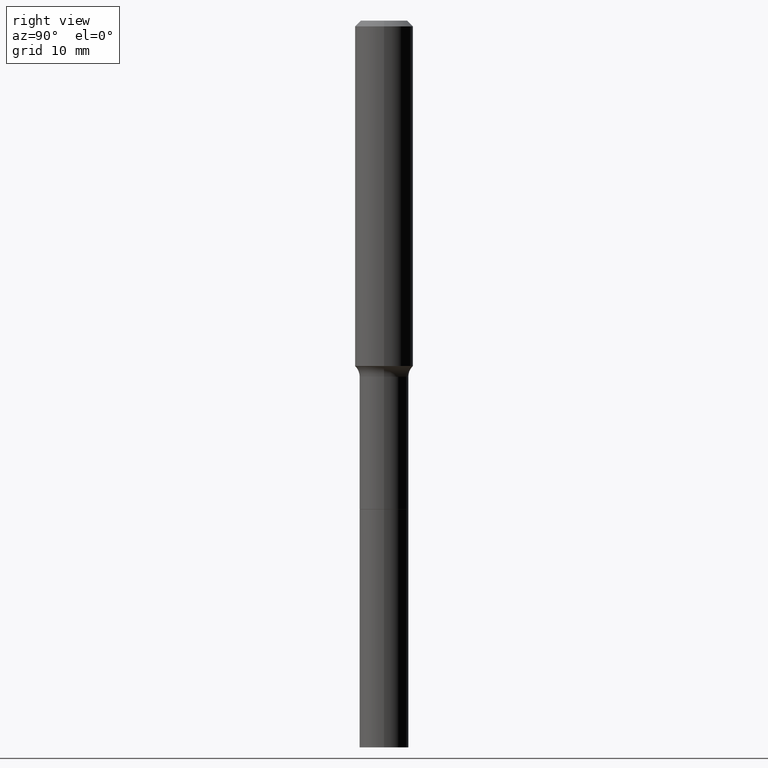
[diagram: clean part render]
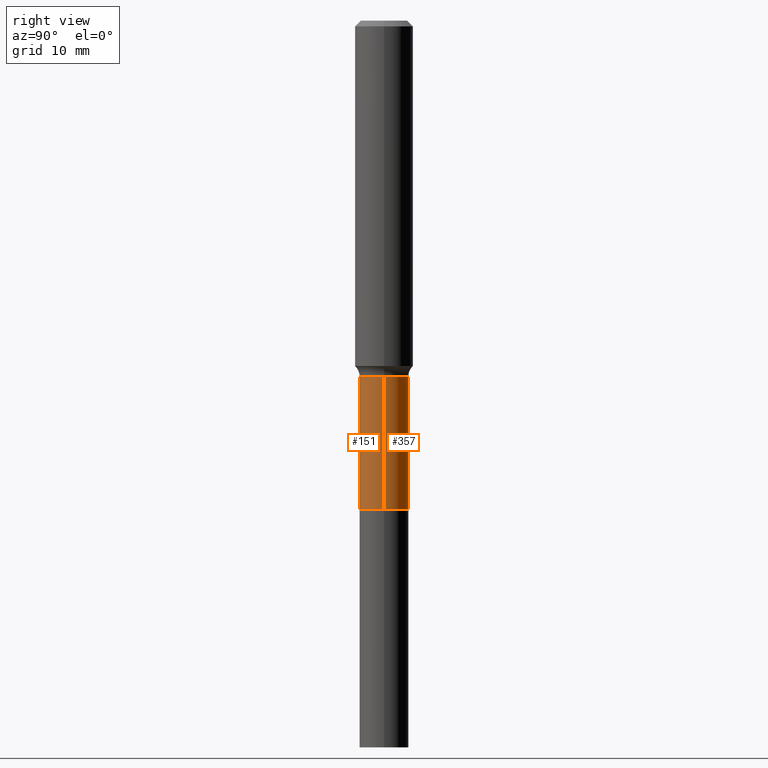
[diagram: same view with one multi-face feature highlighted, each face labeled with its STEP entity id]
A machine part, right view. The highlighted faces form ONE feature: a constant-radius fillet chain: 2 tangent blend faces with common blend radius 3.3731 mm. The faces share edges in the B-rep.
Their STEP definitions:
[1] entity #151 (Cylinder):
#8 = EDGE_CURVE ( 'NONE', #509, #289, #37, .T. ) ;
#25 = DIRECTION ( 'NONE',  ( 1.000000000000000000, -6.982962677686268288E-15, 0.000000000000000000 ) ) ;
#37 = CIRCLE ( 'NONE', #102, 0.1327999999999999181 ) ;
#60 = LINE ( 'NONE', #476, #445 ) ;
#63 = LINE ( 'NONE', #382, #190 ) ;
#65 = DIRECTION ( 'NONE',  ( -2.445468806185136597E-29, 3.491481338843145583E-15, 1.000000000000000000 ) ) ;
#80 = CARTESIAN_POINT ( 'NONE',  ( 0.1327999999999999181, -7.662404946225163231E-15, -1.929000000000000048 ) ) ;
#82 = CIRCLE ( 'NONE', #146, 0.1328000000000000014 ) ;
#102 = AXIS2_PLACEMENT_3D ( 'NONE', #143, #500, #25 ) ;
#105 = CARTESIAN_POINT ( 'NONE',  ( -0.1328000000000000014, -7.045781420518414556E-15, -2.647499999999999964 ) ) ;
#143 = CARTESIAN_POINT ( 'NONE',  ( 4.717309327131129015E-29, -6.735067502628427403E-15, -1.929000000000000048 ) ) ;
#146 = AXIS2_PLACEMENT_3D ( 'NONE', #340, #65, #222 ) ;
#147 = VERTEX_POINT ( 'NONE', #483 ) ;
#151 = ADVANCED_FACE ( 'NONE', ( #320 ), #197, .T. ) ;
#158 = EDGE_LOOP ( 'NONE', ( #393, #497, #369, #169 ) ) ;
#169 = ORIENTED_EDGE ( 'NONE', *, *, #8, .F. ) ;
#175 = CARTESIAN_POINT ( 'NONE',  ( -0.1327999999999999181, -7.045781420518415345E-15, -1.929000000000000048 ) ) ;
#190 = VECTOR ( 'NONE', #429, 39.37007874015748143 ) ;
#193 = CARTESIAN_POINT ( 'NONE',  ( 0.000000000000000000, 0.000000000000000000, 0.000000000000000000 ) ) ;
#197 = CYLINDRICAL_SURFACE ( 'NONE', #330, 0.1327999999999999459 ) ;
#222 = DIRECTION ( 'NONE',  ( 1.000000000000000000, -6.982962677686271444E-15, 0.000000000000000000 ) ) ;
#232 = DIRECTION ( 'NONE',  ( 1.000000000000000000, -6.982962677686266711E-15, 4.876176775795935232E-29 ) ) ;
#289 = VERTEX_POINT ( 'NONE', #80 ) ;
#320 = FACE_OUTER_BOUND ( 'NONE', #158, .T. ) ;
#330 = AXIS2_PLACEMENT_3D ( 'NONE', #193, #347, #232 ) ;
#340 = CARTESIAN_POINT ( 'NONE',  ( 6.474378664375149544E-29, -9.243696844587228217E-15, -2.647499999999999964 ) ) ;
#347 = DIRECTION ( 'NONE',  ( -2.445468806185136597E-29, 3.491481338843145583E-15, 1.000000000000000000 ) ) ;
#369 = ORIENTED_EDGE ( 'NONE', *, *, #388, .T. ) ;
#382 = CARTESIAN_POINT ( 'NONE',  ( 0.1327999999999999459, -9.273374435967358279E-16, 6.475562758256999504E-30 ) ) ;
#388 = EDGE_CURVE ( 'NONE', #147, #289, #63, .T. ) ;
#393 = ORIENTED_EDGE ( 'NONE', *, *, #474, .F. ) ;
#426 = DIRECTION ( 'NONE',  ( -2.445468806185136877E-29, 3.491481338843145188E-15, 1.000000000000000000 ) ) ;
#429 = DIRECTION ( 'NONE',  ( -2.445468806185136877E-29, 3.491481338843145188E-15, 1.000000000000000000 ) ) ;
#445 = VECTOR ( 'NONE', #426, 39.37007874015748143 ) ;
#454 = VERTEX_POINT ( 'NONE', #105 ) ;
#473 = EDGE_CURVE ( 'NONE', #454, #147, #82, .T. ) ;
#474 = EDGE_CURVE ( 'NONE', #454, #509, #60, .T. ) ;
#476 = CARTESIAN_POINT ( 'NONE',  ( -0.1327999999999999459, 9.436007530894126622E-16, -6.532345799858512531E-30 ) ) ;
#483 = CARTESIAN_POINT ( 'NONE',  ( 0.1328000000000000014, -1.017103428818396404E-14, -2.647499999999999964 ) ) ;
#497 = ORIENTED_EDGE ( 'NONE', *, *, #473, .T. ) ;
#500 = DIRECTION ( 'NONE',  ( -2.445468806185136597E-29, 3.491481338843145583E-15, 1.000000000000000000 ) ) ;
#509 = VERTEX_POINT ( 'NONE', #175 ) ;
[2] entity #357 (Cylinder):
#7 = ORIENTED_EDGE ( 'NONE', *, *, #244, .T. ) ;
#15 = ORIENTED_EDGE ( 'NONE', *, *, #474, .T. ) ;
#17 = AXIS2_PLACEMENT_3D ( 'NONE', #507, #188, #309 ) ;
#35 = AXIS2_PLACEMENT_3D ( 'NONE', #164, #412, #488 ) ;
#58 = EDGE_LOOP ( 'NONE', ( #7, #15, #74, #207 ) ) ;
#60 = LINE ( 'NONE', #476, #445 ) ;
#63 = LINE ( 'NONE', #382, #190 ) ;
#74 = ORIENTED_EDGE ( 'NONE', *, *, #413, .F. ) ;
#80 = CARTESIAN_POINT ( 'NONE',  ( 0.1327999999999999181, -7.662404946225163231E-15, -1.929000000000000048 ) ) ;
#89 = CIRCLE ( 'NONE', #503, 0.1328000000000000014 ) ;
#105 = CARTESIAN_POINT ( 'NONE',  ( -0.1328000000000000014, -7.045781420518414556E-15, -2.647499999999999964 ) ) ;
#147 = VERTEX_POINT ( 'NONE', #483 ) ;
#164 = CARTESIAN_POINT ( 'NONE',  ( 0.000000000000000000, 0.000000000000000000, 0.000000000000000000 ) ) ;
#175 = CARTESIAN_POINT ( 'NONE',  ( -0.1327999999999999181, -7.045781420518415345E-15, -1.929000000000000048 ) ) ;
#188 = DIRECTION ( 'NONE',  ( -2.445468806185136597E-29, 3.491481338843145583E-15, 1.000000000000000000 ) ) ;
#190 = VECTOR ( 'NONE', #429, 39.37007874015748143 ) ;
#198 = CARTESIAN_POINT ( 'NONE',  ( 6.474378664375149544E-29, -9.243696844587228217E-15, -2.647499999999999964 ) ) ;
#200 = CIRCLE ( 'NONE', #17, 0.1327999999999999181 ) ;
#201 = DIRECTION ( 'NONE',  ( 1.000000000000000000, -6.982962677686271444E-15, 0.000000000000000000 ) ) ;
#207 = ORIENTED_EDGE ( 'NONE', *, *, #388, .F. ) ;
#244 = EDGE_CURVE ( 'NONE', #147, #454, #89, .T. ) ;
#289 = VERTEX_POINT ( 'NONE', #80 ) ;
#290 = FACE_OUTER_BOUND ( 'NONE', #58, .T. ) ;
#309 = DIRECTION ( 'NONE',  ( 1.000000000000000000, -6.982962677686268288E-15, 0.000000000000000000 ) ) ;
#357 = ADVANCED_FACE ( 'NONE', ( #290 ), #458, .T. ) ;
#382 = CARTESIAN_POINT ( 'NONE',  ( 0.1327999999999999459, -9.273374435967358279E-16, 6.475562758256999504E-30 ) ) ;
#388 = EDGE_CURVE ( 'NONE', #147, #289, #63, .T. ) ;
#403 = DIRECTION ( 'NONE',  ( -2.445468806185136597E-29, 3.491481338843145583E-15, 1.000000000000000000 ) ) ;
#412 = DIRECTION ( 'NONE',  ( -2.445468806185136597E-29, 3.491481338843145583E-15, 1.000000000000000000 ) ) ;
#413 = EDGE_CURVE ( 'NONE', #289, #509, #200, .T. ) ;
#426 = DIRECTION ( 'NONE',  ( -2.445468806185136877E-29, 3.491481338843145188E-15, 1.000000000000000000 ) ) ;
#429 = DIRECTION ( 'NONE',  ( -2.445468806185136877E-29, 3.491481338843145188E-15, 1.000000000000000000 ) ) ;
#445 = VECTOR ( 'NONE', #426, 39.37007874015748143 ) ;
#454 = VERTEX_POINT ( 'NONE', #105 ) ;
#458 = CYLINDRICAL_SURFACE ( 'NONE', #35, 0.1327999999999999459 ) ;
#474 = EDGE_CURVE ( 'NONE', #454, #509, #60, .T. ) ;
#476 = CARTESIAN_POINT ( 'NONE',  ( -0.1327999999999999459, 9.436007530894126622E-16, -6.532345799858512531E-30 ) ) ;
#483 = CARTESIAN_POINT ( 'NONE',  ( 0.1328000000000000014, -1.017103428818396404E-14, -2.647499999999999964 ) ) ;
#488 = DIRECTION ( 'NONE',  ( 1.000000000000000000, -6.982962677686266711E-15, 4.876176775795935232E-29 ) ) ;
#503 = AXIS2_PLACEMENT_3D ( 'NONE', #198, #403, #201 ) ;
#507 = CARTESIAN_POINT ( 'NONE',  ( 4.717309327131129015E-29, -6.735067502628427403E-15, -1.929000000000000048 ) ) ;
#509 = VERTEX_POINT ( 'NONE', #175 ) ;